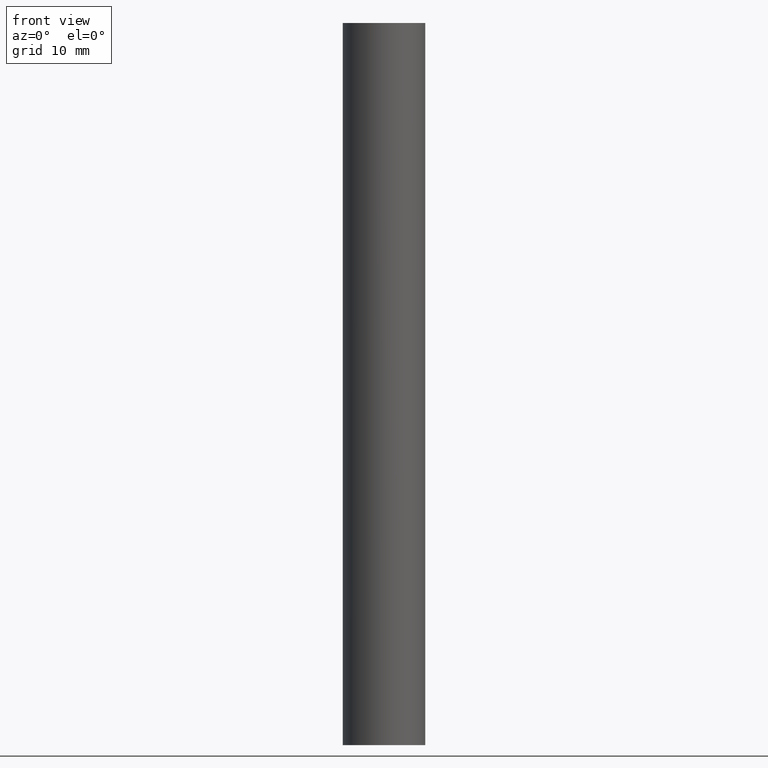
[diagram: clean part render]
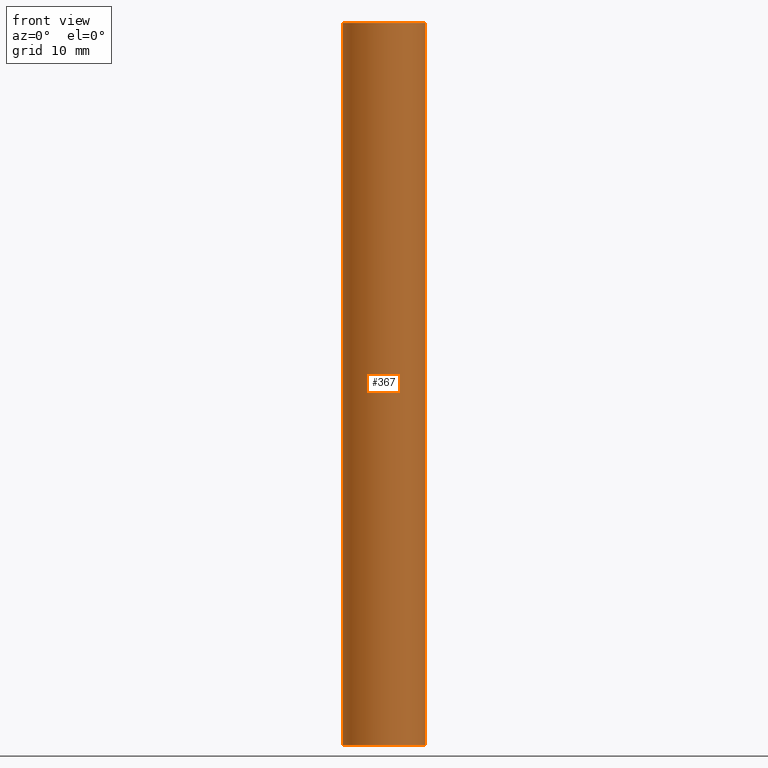
[diagram: same view with one face highlighted and labeled with its STEP entity id]
A machine part, front view. The second image highlights one B-rep face of the part: STEP entity #367.
In plain terms, the highlighted cylindrical surface (bore or boss wall) has radius 4 mm, axis along (-0, -0, -1).
Its self-contained STEP definition (entity closure, byte-faithful):
#183 = DIRECTION ( 'NONE',  ( 1.000000000000000000, 0.000000000000000000, 0.000000000000000000 ) ) ;
#336 = DIRECTION ( 'NONE',  ( -1.000000000000000000, 0.000000000000000000, 0.000000000000000000 ) ) ;
#367 = ADVANCED_FACE ( 'NONE', ( #2576, #1042 ), #6478, .T. ) ;
#1042 = FACE_OUTER_BOUND ( 'NONE', #1780, .T. ) ;
#1304 = DIRECTION ( 'NONE',  ( 0.000000000000000000, 0.000000000000000000, 1.000000000000000000 ) ) ;
#1780 = EDGE_LOOP ( 'NONE', ( #11123 ) ) ;
#1818 = VERTEX_POINT ( 'NONE', #5039 ) ;
#2576 = FACE_OUTER_BOUND ( 'NONE', #13504, .T. ) ;
#2769 = CARTESIAN_POINT ( 'NONE',  ( 4.000000000000000000, 0.000000000000000000, 35.00000000000000000 ) ) ;
#3380 = CIRCLE ( 'NONE', #11347, 4.000000000000000000 ) ;
#3513 = CARTESIAN_POINT ( 'NONE',  ( 0.000000000000000000, 0.000000000000000000, -35.00000000000000000 ) ) ;
#3705 = AXIS2_PLACEMENT_3D ( 'NONE', #6790, #8025, #336 ) ;
#5039 = CARTESIAN_POINT ( 'NONE',  ( 4.000000000000000000, 0.000000000000000000, -35.00000000000000000 ) ) ;
#5056 = CARTESIAN_POINT ( 'NONE',  ( 0.000000000000000000, 0.000000000000000000, 35.00000000000000000 ) ) ;
#5115 = EDGE_CURVE ( 'NONE', #5740, #5740, #8478, .T. ) ;
#5740 = VERTEX_POINT ( 'NONE', #2769 ) ;
#5913 = ORIENTED_EDGE ( 'NONE', *, *, #5115, .F. ) ;
#6478 = CYLINDRICAL_SURFACE ( 'NONE', #3705, 4.000000000000000000 ) ;
#6790 = CARTESIAN_POINT ( 'NONE',  ( 0.000000000000000000, 0.000000000000000000, 35.00000000000000000 ) ) ;
#8025 = DIRECTION ( 'NONE',  ( -0.000000000000000000, -0.000000000000000000, -1.000000000000000000 ) ) ;
#8478 = CIRCLE ( 'NONE', #9939, 4.000000000000000000 ) ;
#9939 = AXIS2_PLACEMENT_3D ( 'NONE', #5056, #10429, #12815 ) ;
#10429 = DIRECTION ( 'NONE',  ( 0.000000000000000000, 0.000000000000000000, 1.000000000000000000 ) ) ;
#11123 = ORIENTED_EDGE ( 'NONE', *, *, #13914, .T. ) ;
#11347 = AXIS2_PLACEMENT_3D ( 'NONE', #3513, #1304, #183 ) ;
#12815 = DIRECTION ( 'NONE',  ( 1.000000000000000000, 0.000000000000000000, 0.000000000000000000 ) ) ;
#13504 = EDGE_LOOP ( 'NONE', ( #5913 ) ) ;
#13914 = EDGE_CURVE ( 'NONE', #1818, #1818, #3380, .T. ) ;